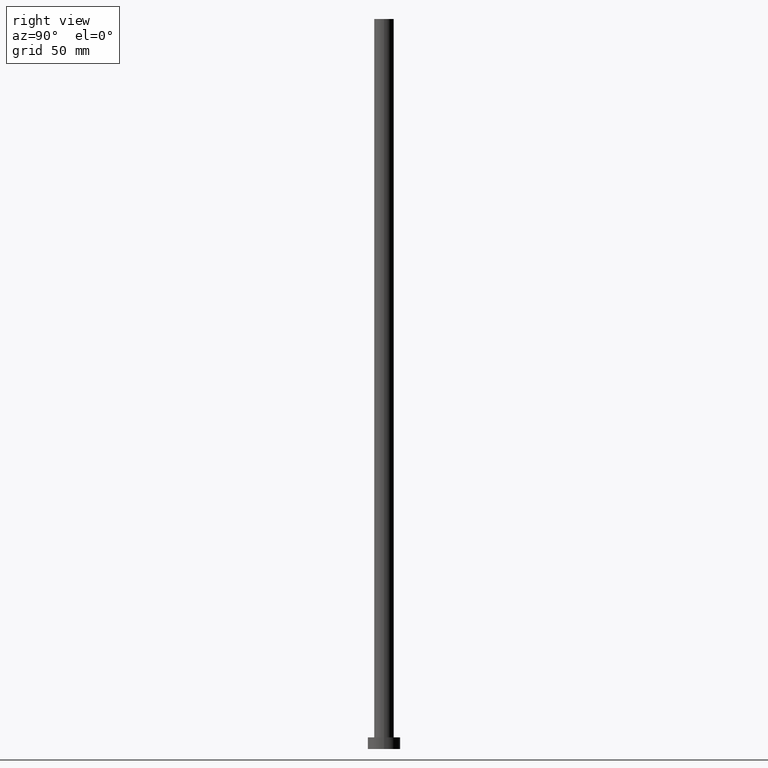
[diagram: clean part render]
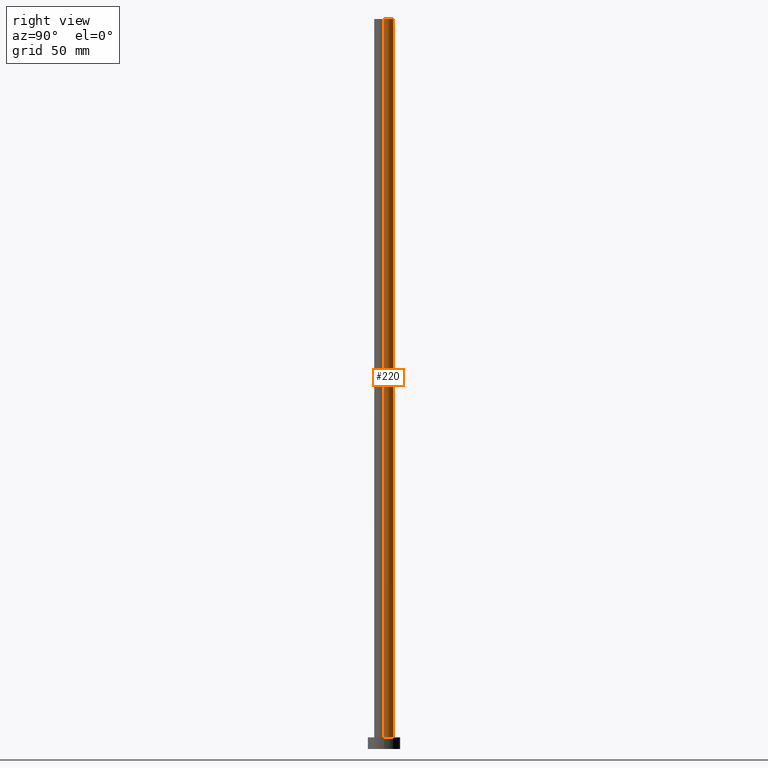
[diagram: same view with one face highlighted and labeled with its STEP entity id]
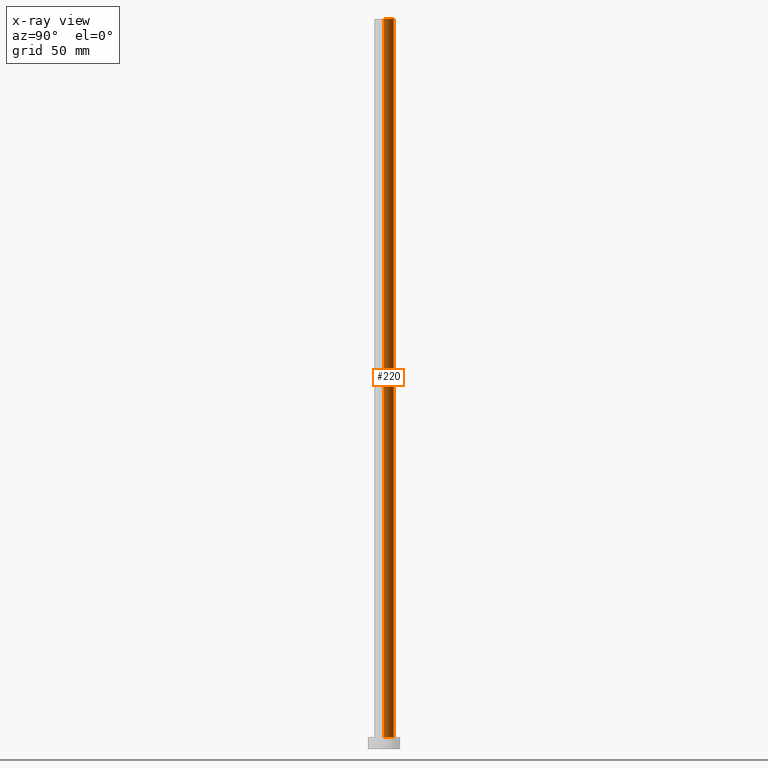
[diagram: x-ray of the same camera — body ghosted, the highlighted face saturated]
A machine part, right view. The second image highlights one B-rep face of the part: STEP entity #220.
The next image is the same camera in x-ray: the body ghosted, the highlighted face saturated — about 0% of this face is hidden behind the body in this view.
In plain terms, the highlighted cylindrical surface (edge-blend (fillet) strip) has radius 4.25 mm, axis along (-0, -0, -1).
Its self-contained STEP definition (entity closure, byte-faithful):
#8 = ORIENTED_EDGE ( 'NONE', *, *, #249, .F. ) ;
#10 = VERTEX_POINT ( 'NONE', #99 ) ;
#12 = EDGE_CURVE ( 'NONE', #108, #29, #24, .T. ) ;
#16 = VECTOR ( 'NONE', #236, 1000.000000000000000 ) ;
#20 = CARTESIAN_POINT ( 'NONE',  ( 0.000000000000000000, 0.000000000000000000, 315.0000000000000000 ) ) ;
#24 = CIRCLE ( 'NONE', #119, 4.250000000000000000 ) ;
#29 = VERTEX_POINT ( 'NONE', #140 ) ;
#47 = CIRCLE ( 'NONE', #251, 4.250000000000000000 ) ;
#51 = EDGE_CURVE ( 'NONE', #108, #226, #169, .T. ) ;
#54 = DIRECTION ( 'NONE',  ( -1.000000000000000000, 0.000000000000000000, 0.000000000000000000 ) ) ;
#60 = ORIENTED_EDGE ( 'NONE', *, *, #12, .F. ) ;
#65 = CYLINDRICAL_SURFACE ( 'NONE', #146, 4.250000000000000000 ) ;
#75 = EDGE_LOOP ( 'NONE', ( #60, #233, #253, #8 ) ) ;
#93 = DIRECTION ( 'NONE',  ( 1.000000000000000000, 0.000000000000000000, 0.000000000000000000 ) ) ;
#99 = CARTESIAN_POINT ( 'NONE',  ( -4.250000000000000000, 0.000000000000000000, 5.000000000000000000 ) ) ;
#102 = CARTESIAN_POINT ( 'NONE',  ( 4.250000000000000000, 5.204748896376250699E-16, 315.0000000000000000 ) ) ;
#108 = VERTEX_POINT ( 'NONE', #163 ) ;
#117 = LINE ( 'NONE', #132, #16 ) ;
#118 = DIRECTION ( 'NONE',  ( 0.000000000000000000, 0.000000000000000000, 1.000000000000000000 ) ) ;
#119 = AXIS2_PLACEMENT_3D ( 'NONE', #20, #118, #240 ) ;
#120 = DIRECTION ( 'NONE',  ( -0.000000000000000000, -0.000000000000000000, -1.000000000000000000 ) ) ;
#132 = CARTESIAN_POINT ( 'NONE',  ( -4.250000000000000000, 0.000000000000000000, 315.0000000000000000 ) ) ;
#140 = CARTESIAN_POINT ( 'NONE',  ( -4.250000000000000000, 0.000000000000000000, 315.0000000000000000 ) ) ;
#146 = AXIS2_PLACEMENT_3D ( 'NONE', #158, #248, #54 ) ;
#158 = CARTESIAN_POINT ( 'NONE',  ( 0.000000000000000000, 0.000000000000000000, 315.0000000000000000 ) ) ;
#163 = CARTESIAN_POINT ( 'NONE',  ( 4.250000000000000000, 5.204748896376250699E-16, 315.0000000000000000 ) ) ;
#165 = FACE_OUTER_BOUND ( 'NONE', #75, .T. ) ;
#169 = LINE ( 'NONE', #102, #218 ) ;
#175 = DIRECTION ( 'NONE',  ( 0.000000000000000000, 0.000000000000000000, 1.000000000000000000 ) ) ;
#176 = EDGE_CURVE ( 'NONE', #226, #10, #47, .T. ) ;
#189 = CARTESIAN_POINT ( 'NONE',  ( 4.250000000000000000, 5.204748896376250699E-16, 5.000000000000000000 ) ) ;
#191 = CARTESIAN_POINT ( 'NONE',  ( 0.000000000000000000, 0.000000000000000000, 5.000000000000000000 ) ) ;
#218 = VECTOR ( 'NONE', #120, 1000.000000000000000 ) ;
#220 = ADVANCED_FACE ( 'NONE', ( #165 ), #65, .T. ) ;
#226 = VERTEX_POINT ( 'NONE', #189 ) ;
#233 = ORIENTED_EDGE ( 'NONE', *, *, #51, .T. ) ;
#236 = DIRECTION ( 'NONE',  ( -0.000000000000000000, -0.000000000000000000, -1.000000000000000000 ) ) ;
#240 = DIRECTION ( 'NONE',  ( 1.000000000000000000, 0.000000000000000000, 0.000000000000000000 ) ) ;
#248 = DIRECTION ( 'NONE',  ( -0.000000000000000000, -0.000000000000000000, -1.000000000000000000 ) ) ;
#249 = EDGE_CURVE ( 'NONE', #29, #10, #117, .T. ) ;
#251 = AXIS2_PLACEMENT_3D ( 'NONE', #191, #175, #93 ) ;
#253 = ORIENTED_EDGE ( 'NONE', *, *, #176, .T. ) ;